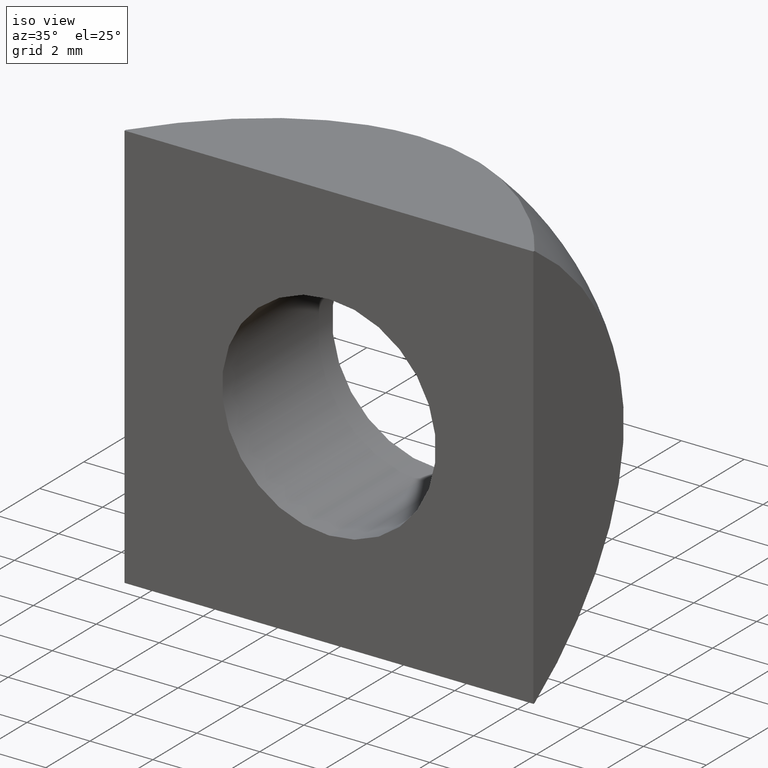
[diagram: clean part render]
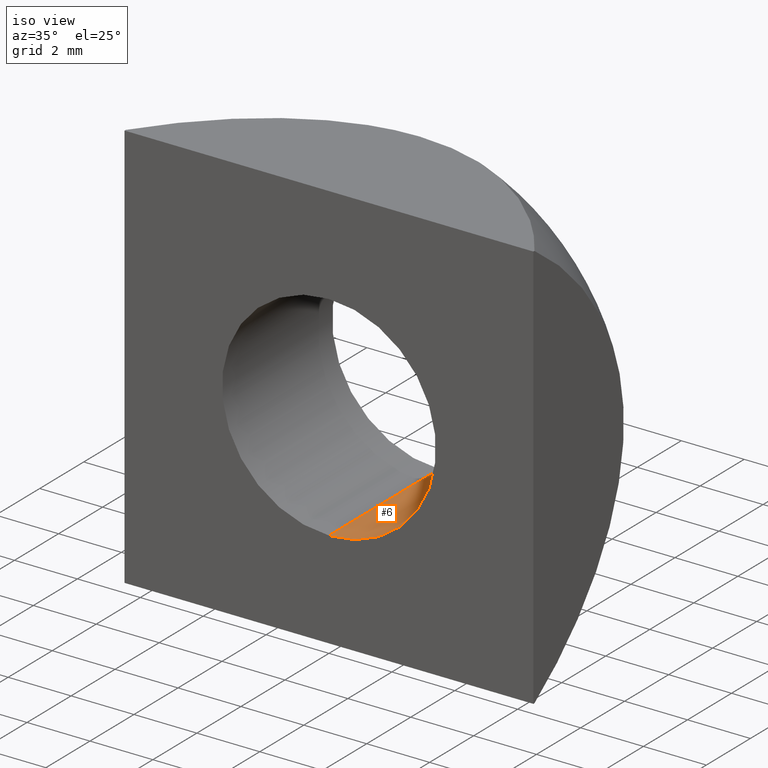
[diagram: same view with one face highlighted and labeled with its STEP entity id]
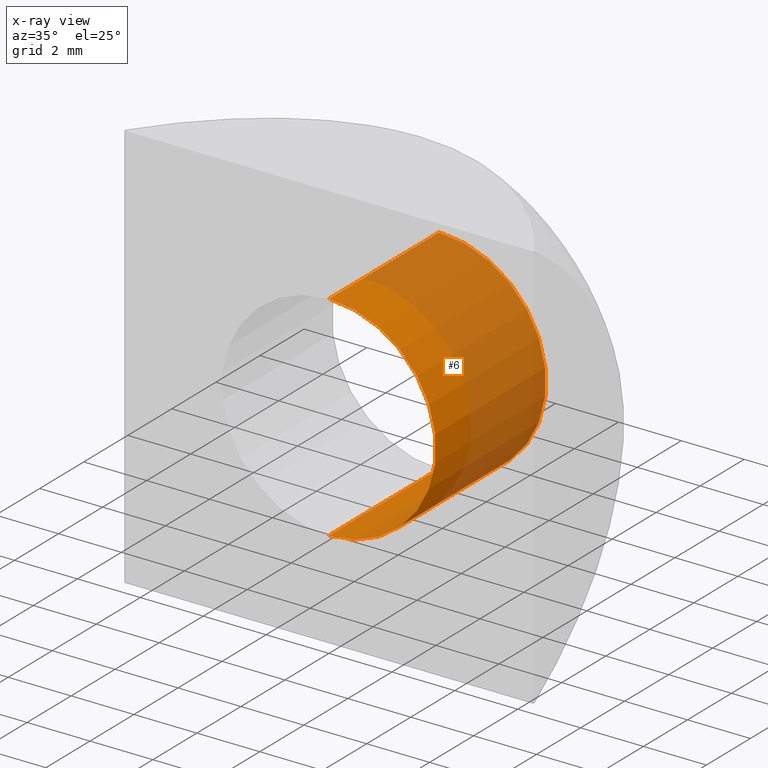
[diagram: x-ray of the same camera — body ghosted, the highlighted face saturated]
A machine part, iso view. The second image highlights one B-rep face of the part: STEP entity #6.
The next image is the same camera in x-ray: the body ghosted, the highlighted face saturated — about 63% of this face is hidden behind the body in this view.
In plain terms, the highlighted cylindrical surface (partial cylindrical patch) has radius 3.4 mm, axis along (-0, 1, -0).
Its self-contained STEP definition (entity closure, byte-faithful):
#4 = EDGE_CURVE ( 'NONE', #365, #386, #443, .T. ) ;
#6 = ADVANCED_FACE ( 'NONE', ( #124 ), #341, .F. ) ;
#21 = EDGE_CURVE ( 'NONE', #149, #386, #66, .T. ) ;
#29 = EDGE_CURVE ( 'NONE', #365, #130, #86, .T. ) ;
#33 = EDGE_CURVE ( 'NONE', #130, #149, #299, .T. ) ;
#63 = AXIS2_PLACEMENT_3D ( 'NONE', #186, #450, #201 ) ;
#66 = CIRCLE ( 'NONE', #76, 3.399999999999999500 ) ;
#68 = VECTOR ( 'NONE', #233, 1000.000000000000000 ) ;
#76 = AXIS2_PLACEMENT_3D ( 'NONE', #316, #169, #129 ) ;
#81 = AXIS2_PLACEMENT_3D ( 'NONE', #439, #240, #330 ) ;
#86 = CIRCLE ( 'NONE', #81, 3.399999999999999500 ) ;
#90 = VECTOR ( 'NONE', #373, 1000.000000000000000 ) ;
#124 = FACE_OUTER_BOUND ( 'NONE', #260, .T. ) ;
#129 = DIRECTION ( 'NONE',  ( 0.0000000000000000000, 0.0000000000000000000, 1.000000000000000000 ) ) ;
#130 = VERTEX_POINT ( 'NONE', #304 ) ;
#149 = VERTEX_POINT ( 'NONE', #231 ) ;
#169 = DIRECTION ( 'NONE',  ( -0.0000000000000000000, 1.000000000000000000, -0.0000000000000000000 ) ) ;
#186 = CARTESIAN_POINT ( 'NONE',  ( 0.0000000000000000000, 5.000000000000000000, 0.0000000000000000000 ) ) ;
#201 = DIRECTION ( 'NONE',  ( 0.0000000000000000000, 0.0000000000000000000, 1.000000000000000000 ) ) ;
#204 = ORIENTED_EDGE ( 'NONE', *, *, #33, .T. ) ;
#231 = CARTESIAN_POINT ( 'NONE',  ( 0.0000000000000000000, 5.000000000000000000, 3.399999999999999500 ) ) ;
#233 = DIRECTION ( 'NONE',  ( -0.0000000000000000000, 1.000000000000000000, -0.0000000000000000000 ) ) ;
#240 = DIRECTION ( 'NONE',  ( 0.0000000000000000000, -1.000000000000000000, 0.0000000000000000000 ) ) ;
#260 = EDGE_LOOP ( 'NONE', ( #339, #448, #204, #315 ) ) ;
#290 = CARTESIAN_POINT ( 'NONE',  ( 4.163799117101000100E-016, 0.0000000000000000000, -3.399999999999999500 ) ) ;
#299 = LINE ( 'NONE', #382, #68 ) ;
#304 = CARTESIAN_POINT ( 'NONE',  ( 0.0000000000000000000, 0.0000000000000000000, 3.399999999999999500 ) ) ;
#315 = ORIENTED_EDGE ( 'NONE', *, *, #21, .T. ) ;
#316 = CARTESIAN_POINT ( 'NONE',  ( 0.0000000000000000000, 5.000000000000000000, 0.0000000000000000000 ) ) ;
#330 = DIRECTION ( 'NONE',  ( 0.0000000000000000000, 0.0000000000000000000, -1.000000000000000000 ) ) ;
#339 = ORIENTED_EDGE ( 'NONE', *, *, #4, .F. ) ;
#341 = CYLINDRICAL_SURFACE ( 'NONE', #63, 3.399999999999999500 ) ;
#349 = CARTESIAN_POINT ( 'NONE',  ( 4.163799117101000100E-016, 5.000000000000000000, -3.399999999999999500 ) ) ;
#365 = VERTEX_POINT ( 'NONE', #290 ) ;
#373 = DIRECTION ( 'NONE',  ( -0.0000000000000000000, 1.000000000000000000, -0.0000000000000000000 ) ) ;
#382 = CARTESIAN_POINT ( 'NONE',  ( 0.0000000000000000000, 5.000000000000000000, 3.399999999999999500 ) ) ;
#386 = VERTEX_POINT ( 'NONE', #407 ) ;
#407 = CARTESIAN_POINT ( 'NONE',  ( 4.163799117101000100E-016, 5.000000000000000000, -3.399999999999999500 ) ) ;
#439 = CARTESIAN_POINT ( 'NONE',  ( 0.0000000000000000000, 0.0000000000000000000, 0.0000000000000000000 ) ) ;
#443 = LINE ( 'NONE', #349, #90 ) ;
#448 = ORIENTED_EDGE ( 'NONE', *, *, #29, .T. ) ;
#450 = DIRECTION ( 'NONE',  ( -0.0000000000000000000, 1.000000000000000000, -0.0000000000000000000 ) ) ;